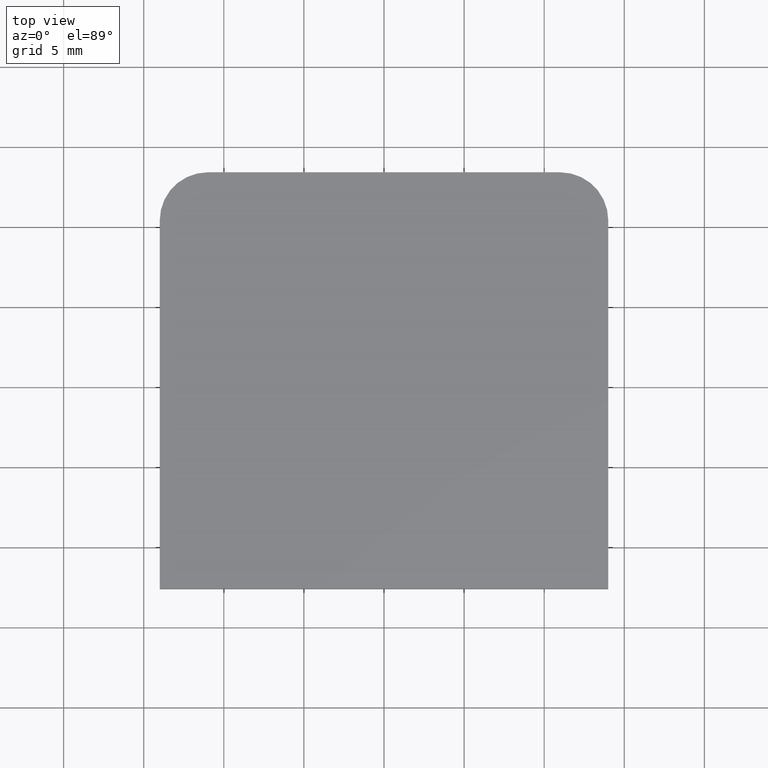
[diagram: clean part render]
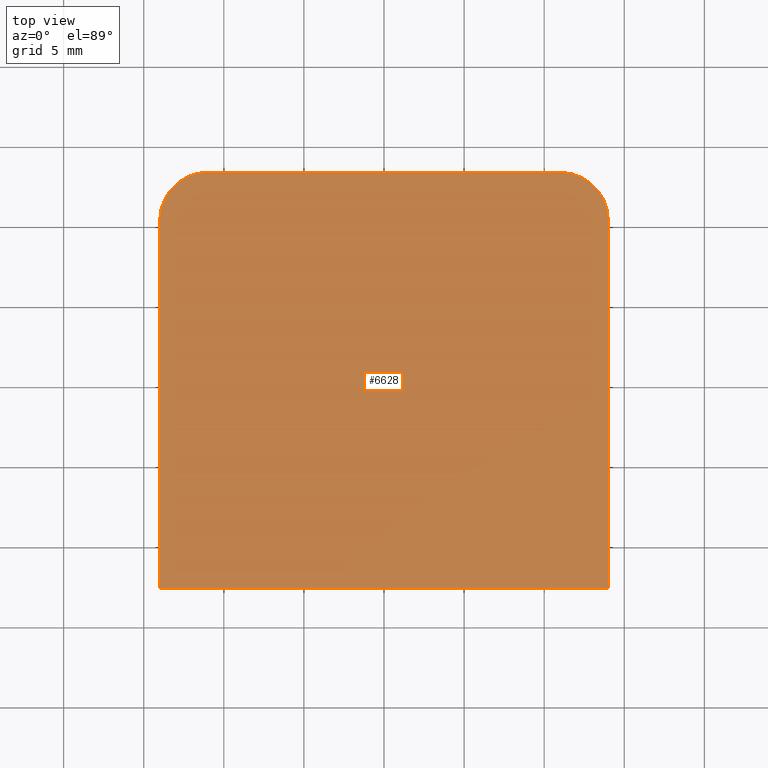
[diagram: same view with one face highlighted and labeled with its STEP entity id]
A machine part, top view. The second image highlights one B-rep face of the part: STEP entity #6628.
In plain terms, the highlighted planar face has unit normal (-0, 0, 1).
Its self-contained STEP definition (entity closure, byte-faithful):
#996 = ORIENTED_EDGE ( 'NONE', *, *, #2031, .T. ) ;
#1615 = LINE ( 'NONE', #4910, #12189 ) ;
#2031 = EDGE_CURVE ( 'NONE', #16261, #10241, #16222, .T. ) ;
#2047 = ORIENTED_EDGE ( 'NONE', *, *, #4472, .T. ) ;
#2116 = CARTESIAN_POINT ( 'NONE',  ( 14.00000000000000000, -13.00000000000000000, 2.000000000000000000 ) ) ;
#2142 = DIRECTION ( 'NONE',  ( -1.000000000000000000, -0.000000000000000000, -0.000000000000000000 ) ) ;
#2659 = CARTESIAN_POINT ( 'NONE',  ( 10.99999999999998934, 13.00000000000000000, 2.000000000000000000 ) ) ;
#2874 = DIRECTION ( 'NONE',  ( -0.000000000000000000, 0.000000000000000000, 1.000000000000000000 ) ) ;
#2930 = CARTESIAN_POINT ( 'NONE',  ( 0.000000000000000000, 0.000000000000000000, 2.000000000000000000 ) ) ;
#3044 = DIRECTION ( 'NONE',  ( 1.000000000000000000, 0.000000000000000000, 0.000000000000000000 ) ) ;
#3391 = CARTESIAN_POINT ( 'NONE',  ( -13.99999999999999645, -13.00000000000000000, 2.000000000000000000 ) ) ;
#3562 = VECTOR ( 'NONE', #12323, 1000.000000000000000 ) ;
#4472 = EDGE_CURVE ( 'NONE', #7126, #7159, #5399, .T. ) ;
#4910 = CARTESIAN_POINT ( 'NONE',  ( -14.00000000000000178, 13.00000000000000000, 2.000000000000000000 ) ) ;
#5196 = LINE ( 'NONE', #11251, #6220 ) ;
#5399 = LINE ( 'NONE', #14170, #7584 ) ;
#6220 = VECTOR ( 'NONE', #13899, 1000.000000000000000 ) ;
#6355 = AXIS2_PLACEMENT_3D ( 'NONE', #15078, #16267, #13674 ) ;
#6628 = ADVANCED_FACE ( 'NONE', ( #14445 ), #6877, .T. ) ;
#6637 = AXIS2_PLACEMENT_3D ( 'NONE', #2930, #2874, #3044 ) ;
#6683 = DIRECTION ( 'NONE',  ( 1.000000000000000000, 0.000000000000000000, 0.000000000000000000 ) ) ;
#6694 = EDGE_LOOP ( 'NONE', ( #16429, #996, #15043, #2047, #7119, #9712 ) ) ;
#6877 = PLANE ( 'NONE',  #6637 ) ;
#6998 = VERTEX_POINT ( 'NONE', #13291 ) ;
#7119 = ORIENTED_EDGE ( 'NONE', *, *, #10915, .T. ) ;
#7126 = VERTEX_POINT ( 'NONE', #3391 ) ;
#7159 = VERTEX_POINT ( 'NONE', #2116 ) ;
#7584 = VECTOR ( 'NONE', #6683, 1000.000000000000000 ) ;
#8277 = CARTESIAN_POINT ( 'NONE',  ( -11.00000000000000355, 13.00000000000000000, 2.000000000000000000 ) ) ;
#8474 = CARTESIAN_POINT ( 'NONE',  ( -11.00000000000000355, 9.999999999999998224, 2.000000000000000000 ) ) ;
#9134 = LINE ( 'NONE', #16107, #3562 ) ;
#9712 = ORIENTED_EDGE ( 'NONE', *, *, #15929, .T. ) ;
#10241 = VERTEX_POINT ( 'NONE', #15151 ) ;
#10915 = EDGE_CURVE ( 'NONE', #7159, #6998, #5196, .T. ) ;
#11251 = CARTESIAN_POINT ( 'NONE',  ( 13.99999999999999467, 13.00000000000000000, 2.000000000000000000 ) ) ;
#11483 = EDGE_CURVE ( 'NONE', #13386, #16261, #1615, .T. ) ;
#12081 = DIRECTION ( 'NONE',  ( 1.000000000000000000, 0.000000000000000000, 0.000000000000000000 ) ) ;
#12189 = VECTOR ( 'NONE', #2142, 1000.000000000000000 ) ;
#12323 = DIRECTION ( 'NONE',  ( 2.001604010742470255E-16, -1.000000000000000000, 0.000000000000000000 ) ) ;
#13291 = CARTESIAN_POINT ( 'NONE',  ( 13.99999999999999467, 9.999999999999998224, 2.000000000000000000 ) ) ;
#13386 = VERTEX_POINT ( 'NONE', #2659 ) ;
#13674 = DIRECTION ( 'NONE',  ( 1.000000000000000000, 0.000000000000000000, 0.000000000000000000 ) ) ;
#13684 = AXIS2_PLACEMENT_3D ( 'NONE', #8474, #16237, #12081 ) ;
#13740 = CIRCLE ( 'NONE', #6355, 2.999999999999999112 ) ;
#13899 = DIRECTION ( 'NONE',  ( -2.001604010742470255E-16, 1.000000000000000000, -0.000000000000000000 ) ) ;
#14015 = EDGE_CURVE ( 'NONE', #10241, #7126, #9134, .T. ) ;
#14170 = CARTESIAN_POINT ( 'NONE',  ( -13.99999999999999645, -13.00000000000000000, 2.000000000000000000 ) ) ;
#14445 = FACE_OUTER_BOUND ( 'NONE', #6694, .T. ) ;
#15043 = ORIENTED_EDGE ( 'NONE', *, *, #14015, .T. ) ;
#15078 = CARTESIAN_POINT ( 'NONE',  ( 10.99999999999999645, 9.999999999999998224, 2.000000000000000000 ) ) ;
#15151 = CARTESIAN_POINT ( 'NONE',  ( -14.00000000000000178, 9.999999999999998224, 2.000000000000000000 ) ) ;
#15929 = EDGE_CURVE ( 'NONE', #6998, #13386, #13740, .T. ) ;
#16107 = CARTESIAN_POINT ( 'NONE',  ( -14.00000000000000178, 13.00000000000000000, 2.000000000000000000 ) ) ;
#16222 = CIRCLE ( 'NONE', #13684, 2.999999999999999112 ) ;
#16237 = DIRECTION ( 'NONE',  ( -0.000000000000000000, 0.000000000000000000, 1.000000000000000000 ) ) ;
#16261 = VERTEX_POINT ( 'NONE', #8277 ) ;
#16267 = DIRECTION ( 'NONE',  ( -0.000000000000000000, 0.000000000000000000, 1.000000000000000000 ) ) ;
#16429 = ORIENTED_EDGE ( 'NONE', *, *, #11483, .T. ) ;